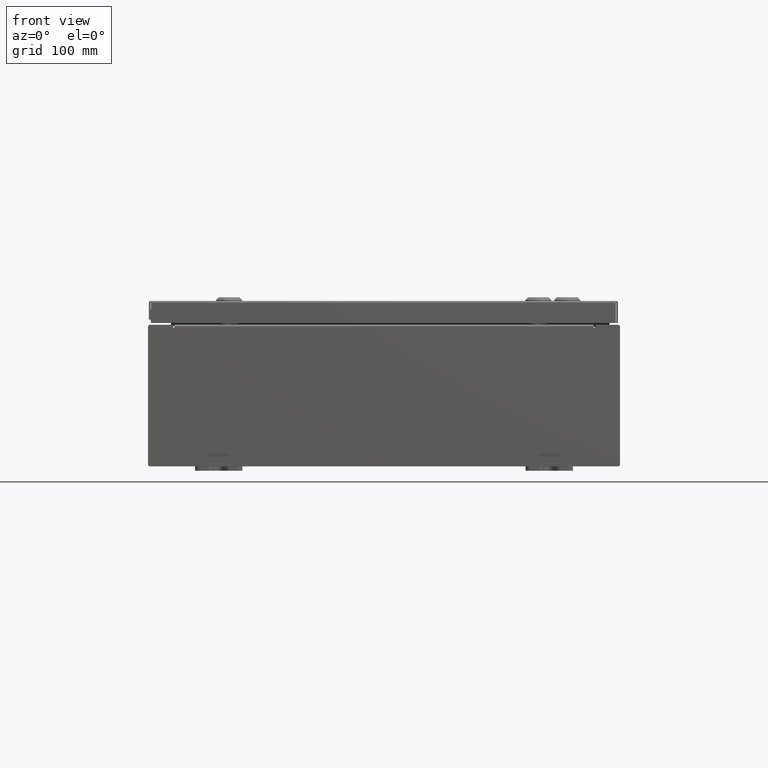
[diagram: clean part render]
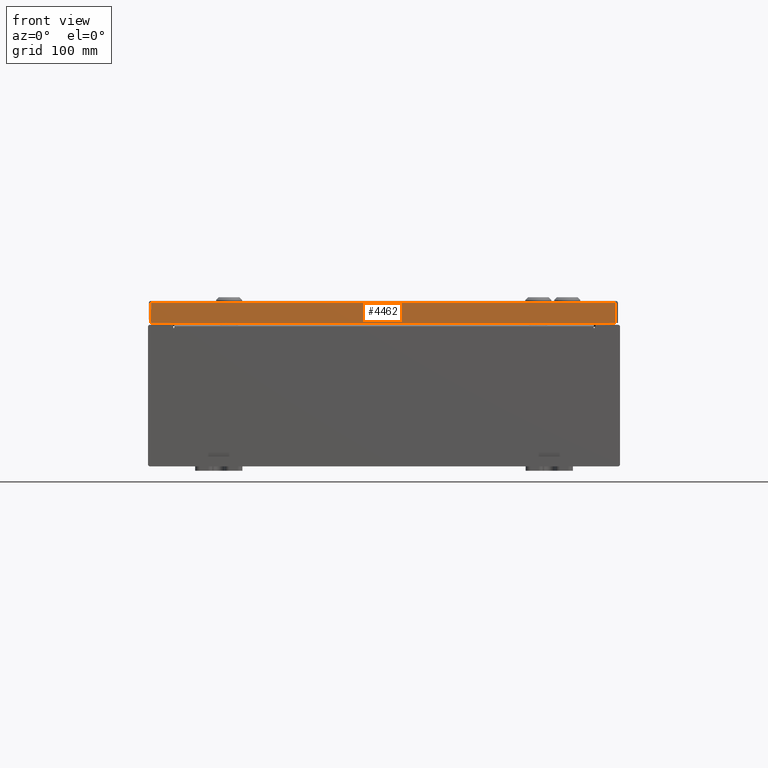
[diagram: same view with one face highlighted and labeled with its STEP entity id]
A machine part, front view. The second image highlights one B-rep face of the part: STEP entity #4462.
In plain terms, the highlighted planar face has unit normal (-0, 1, -0).
Its self-contained STEP definition (entity closure, byte-faithful):
#710 = CARTESIAN_POINT ( 'NONE',  ( -9.848657864376265900, -9.937500000000001800, 2.542673665674263500E-014 ) ) ;
#955 = CARTESIAN_POINT ( 'NONE',  ( -9.848657864376264100, -9.937500000000001800, -0.08770000000000008300 ) ) ;
#995 = EDGE_CURVE ( 'NONE', #53401, #41065, #53881, .T. ) ;
#2123 = CARTESIAN_POINT ( 'NONE',  ( 3.113183830562557100E-030, -9.937500000000001800, 2.542673665674263500E-014 ) ) ;
#2266 = PLANE ( 'NONE',  #25493 ) ;
#2678 = DIRECTION ( 'NONE',  ( -3.132763603081817700E-031, 1.000000000000000000, -2.532419924601866100E-015 ) ) ;
#2744 = DIRECTION ( 'NONE',  ( 0.0000000000000000000, 2.532419924601866100E-015, 1.000000000000000000 ) ) ;
#4462 = ADVANCED_FACE ( 'NONE', ( #55554 ), #2266, .F. ) ;
#6237 = DIRECTION ( 'NONE',  ( -1.000000000000000000, 4.379057701015054300E-047, 1.237063242414006500E-016 ) ) ;
#8678 = CARTESIAN_POINT ( 'NONE',  ( 9.848657864376265900, -9.937500000000001800, -0.07469999999999980800 ) ) ;
#11320 = LINE ( 'NONE', #710, #21293 ) ;
#13647 = DIRECTION ( 'NONE',  ( -0.0000000000000000000, -2.532419924601866100E-015, -1.000000000000000000 ) ) ;
#14335 = CARTESIAN_POINT ( 'NONE',  ( 9.937499999999998200, -9.937500000000001800, -0.08770000000000008300 ) ) ;
#14693 = VECTOR ( 'NONE', #15194, 39.37007874015748100 ) ;
#15084 = ORIENTED_EDGE ( 'NONE', *, *, #995, .F. ) ;
#15194 = DIRECTION ( 'NONE',  ( 1.000000000000000000, 3.132763603081818100E-031, -7.843572268217993600E-046 ) ) ;
#16544 = LINE ( 'NONE', #8678, #51181 ) ;
#19420 = ORIENTED_EDGE ( 'NONE', *, *, #38727, .T. ) ;
#19807 = EDGE_CURVE ( 'NONE', #31146, #38806, #56759, .T. ) ;
#20969 = ORIENTED_EDGE ( 'NONE', *, *, #19807, .F. ) ;
#21293 = VECTOR ( 'NONE', #29579, 39.37007874015748100 ) ;
#21662 = ORIENTED_EDGE ( 'NONE', *, *, #52064, .F. ) ;
#24784 = CARTESIAN_POINT ( 'NONE',  ( 9.848657864376264100, -9.937500000000001800, -0.08770000000000008300 ) ) ;
#25493 = AXIS2_PLACEMENT_3D ( 'NONE', #2123, #2678, #2744 ) ;
#29579 = DIRECTION ( 'NONE',  ( 0.0000000000000000000, -2.532419924601866100E-015, -1.000000000000000000 ) ) ;
#31146 = VERTEX_POINT ( 'NONE', #33033 ) ;
#33033 = CARTESIAN_POINT ( 'NONE',  ( 9.848657864376265900, -9.937500000000003600, -0.9376999999999997600 ) ) ;
#35532 = CARTESIAN_POINT ( 'NONE',  ( 9.937499999999998200, -9.937500000000003600, -0.9376999999999997600 ) ) ;
#38727 = EDGE_CURVE ( 'NONE', #53401, #38806, #11320, .T. ) ;
#38806 = VERTEX_POINT ( 'NONE', #41829 ) ;
#41065 = VERTEX_POINT ( 'NONE', #24784 ) ;
#41829 = CARTESIAN_POINT ( 'NONE',  ( -9.848657864376264100, -9.937500000000003600, -0.9376999999999973100 ) ) ;
#43823 = VECTOR ( 'NONE', #6237, 39.37007874015748100 ) ;
#51181 = VECTOR ( 'NONE', #13647, 39.37007874015748100 ) ;
#52064 = EDGE_CURVE ( 'NONE', #41065, #31146, #16544, .T. ) ;
#53401 = VERTEX_POINT ( 'NONE', #955 ) ;
#53881 = LINE ( 'NONE', #14335, #14693 ) ;
#55554 = FACE_OUTER_BOUND ( 'NONE', #59670, .T. ) ;
#56759 = LINE ( 'NONE', #35532, #43823 ) ;
#59670 = EDGE_LOOP ( 'NONE', ( #15084, #19420, #20969, #21662 ) ) ;